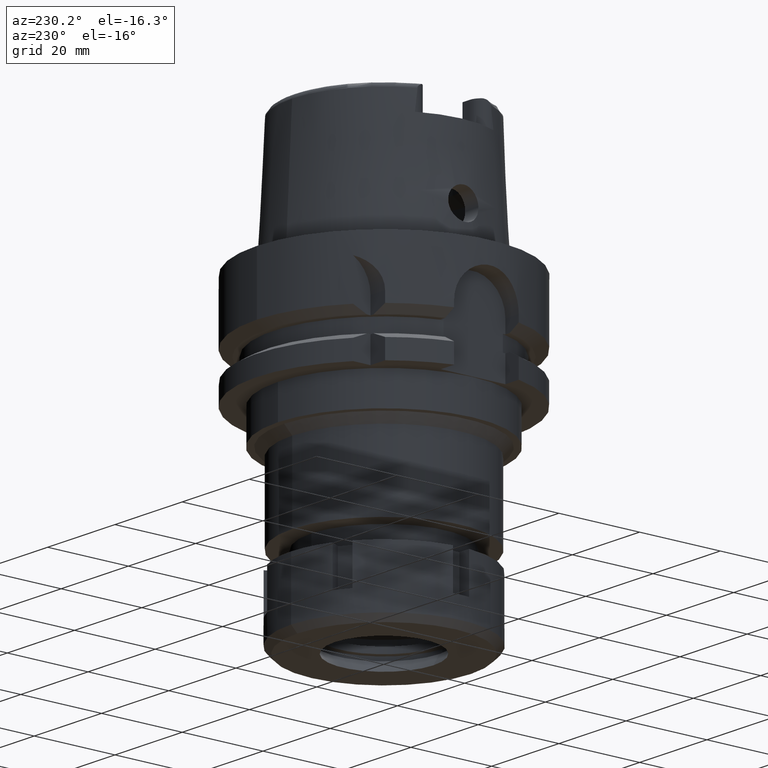
[diagram: clean part render]
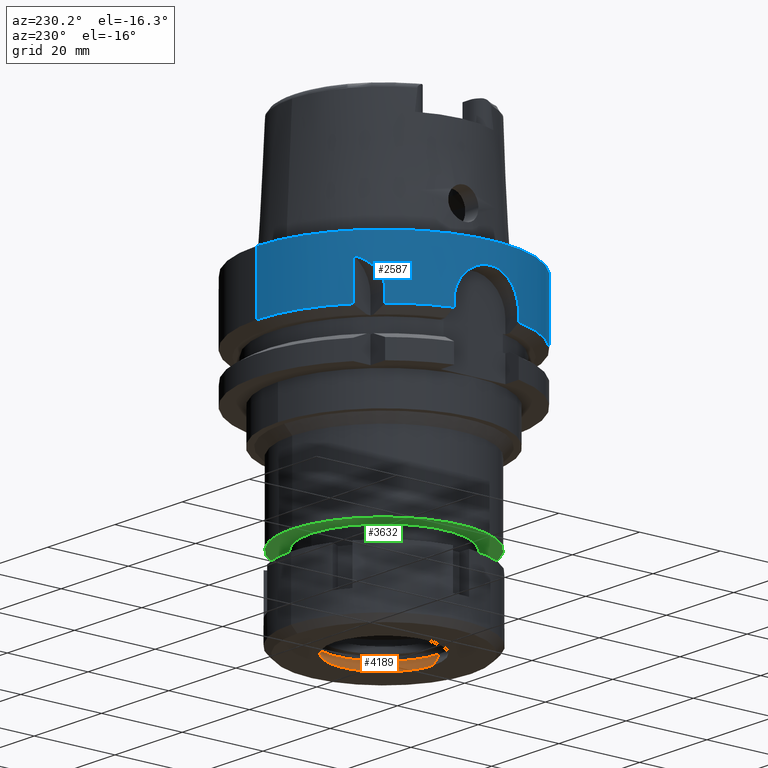
[diagram: same view with three faces highlighted in distinct colors, each labeled with its STEP entity id]
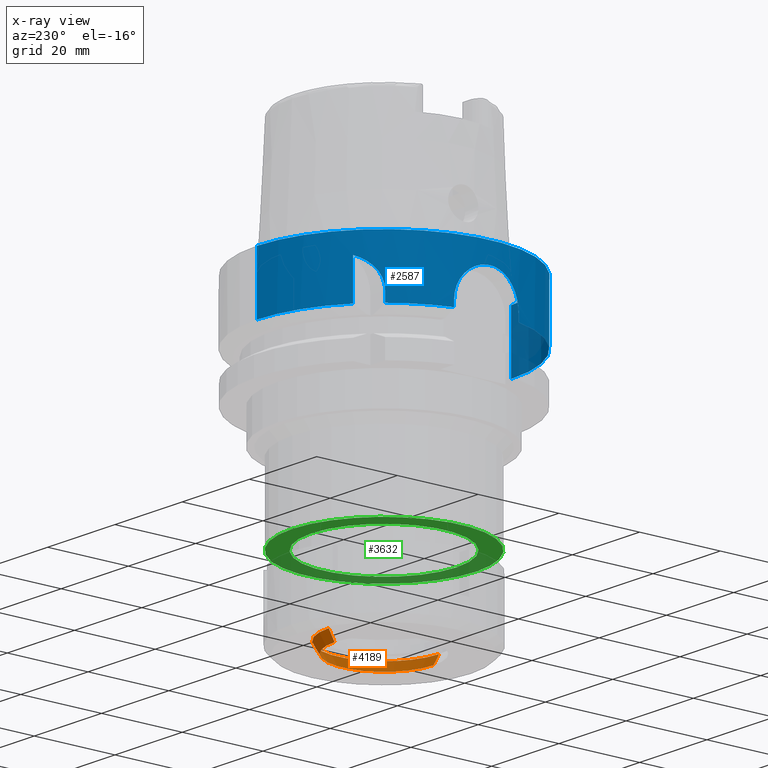
[diagram: x-ray of the same camera — body ghosted, the three highlighted faces saturated]
A machine part, auxiliary view with three faces highlighted in distinct colors.
The next image is the same camera in x-ray (body ghosted, the three faces saturated) — at least one of them is partly hidden behind the body in this view.
Their STEP definitions:

[orange] entity #4189 — the highlighted conical surface has half-angle 30 deg.
#86 = CARTESIAN_POINT ( 'NONE',  ( 0.0000000000000000000, 0.0000000000000000000, -16.00000000000000000 ) ) ;
#233 = ORIENTED_EDGE ( 'NONE', *, *, #5155, .T. ) ;
#357 = AXIS2_PLACEMENT_3D ( 'NONE', #1142, #4063, #3113 ) ;
#623 = CARTESIAN_POINT ( 'NONE',  ( 0.0000000000000000000, -12.25000000000000000, -16.00000000000000000 ) ) ;
#661 = AXIS2_PLACEMENT_3D ( 'NONE', #2147, #1275, #799 ) ;
#799 = DIRECTION ( 'NONE',  ( 0.0000000000000000000, -1.000000000000000000, 0.0000000000000000000 ) ) ;
#955 = CONICAL_SURFACE ( 'NONE', #357, 12.97168783649000012, 0.5235987755981996727 ) ;
#1007 = CARTESIAN_POINT ( 'NONE',  ( 0.0000000000000000000, 12.25000000000000000, -16.00000000000000000 ) ) ;
#1046 = CARTESIAN_POINT ( 'NONE',  ( 0.0000000000000000000, 13.69337567298000025, -13.50000000000000000 ) ) ;
#1108 = EDGE_LOOP ( 'NONE', ( #233, #4703, #3254, #5651 ) ) ;
#1142 = CARTESIAN_POINT ( 'NONE',  ( 0.0000000000000000000, 0.0000000000000000000, -14.75000000000000000 ) ) ;
#1275 = DIRECTION ( 'NONE',  ( 0.0000000000000000000, 0.0000000000000000000, 1.000000000000000000 ) ) ;
#1279 = LINE ( 'NONE', #3211, #3076 ) ;
#1459 = EDGE_CURVE ( 'NONE', #5921, #5547, #3383, .T. ) ;
#1531 = CARTESIAN_POINT ( 'NONE',  ( 0.0000000000000000000, -13.69337567298000025, -13.50000000000000000 ) ) ;
#1751 = VERTEX_POINT ( 'NONE', #1531 ) ;
#1841 = CARTESIAN_POINT ( 'NONE',  ( 0.0000000000000000000, 12.25000000000000000, -16.00000000000000000 ) ) ;
#2147 = CARTESIAN_POINT ( 'NONE',  ( 0.0000000000000000000, 0.0000000000000000000, -13.50000000000000000 ) ) ;
#2177 = CIRCLE ( 'NONE', #661, 13.69337567298000025 ) ;
#3076 = VECTOR ( 'NONE', #5989, 1000.000000000000114 ) ;
#3113 = DIRECTION ( 'NONE',  ( 0.0000000000000000000, 1.000000000000000000, 0.0000000000000000000 ) ) ;
#3211 = CARTESIAN_POINT ( 'NONE',  ( 0.0000000000000000000, -12.25000000000000000, -16.00000000000000000 ) ) ;
#3254 = ORIENTED_EDGE ( 'NONE', *, *, #5692, .T. ) ;
#3265 = VECTOR ( 'NONE', #3949, 1000.000000000000114 ) ;
#3294 = AXIS2_PLACEMENT_3D ( 'NONE', #86, #4887, #4537 ) ;
#3383 = LINE ( 'NONE', #1007, #3265 ) ;
#3949 = DIRECTION ( 'NONE',  ( 0.0000000000000000000, 0.4999999999996301292, 0.8660254037846522035 ) ) ;
#4063 = DIRECTION ( 'NONE',  ( 0.0000000000000000000, 0.0000000000000000000, 1.000000000000000000 ) ) ;
#4176 = EDGE_CURVE ( 'NONE', #6059, #1751, #1279, .T. ) ;
#4189 = ADVANCED_FACE ( 'NONE', ( #5480 ), #955, .F. ) ;
#4537 = DIRECTION ( 'NONE',  ( 0.0000000000000000000, 1.000000000000000000, 0.0000000000000000000 ) ) ;
#4703 = ORIENTED_EDGE ( 'NONE', *, *, #4176, .T. ) ;
#4887 = DIRECTION ( 'NONE',  ( 0.0000000000000000000, 0.0000000000000000000, -1.000000000000000000 ) ) ;
#5155 = EDGE_CURVE ( 'NONE', #5921, #6059, #5213, .T. ) ;
#5213 = CIRCLE ( 'NONE', #3294, 12.25000000000000000 ) ;
#5480 = FACE_OUTER_BOUND ( 'NONE', #1108, .T. ) ;
#5547 = VERTEX_POINT ( 'NONE', #1046 ) ;
#5651 = ORIENTED_EDGE ( 'NONE', *, *, #1459, .F. ) ;
#5692 = EDGE_CURVE ( 'NONE', #1751, #5547, #2177, .T. ) ;
#5921 = VERTEX_POINT ( 'NONE', #1841 ) ;
#5989 = DIRECTION ( 'NONE',  ( 0.0000000000000000000, -0.4999999999996301292, 0.8660254037846522035 ) ) ;
#6059 = VERTEX_POINT ( 'NONE', #623 ) ;

[blue] entity #2587 — the highlighted cylindrical surface (partial cylindrical patch) has radius 31.5 mm, axis along (0, 0, 1).
#12 = CARTESIAN_POINT ( 'NONE',  ( -30.53478132457567895, -7.738413873979763657, -10.95404076896876511 ) ) ;
#14 = DIRECTION ( 'NONE',  ( -0.9672125547036138915, -0.2539682539683034701, 0.0000000000000000000 ) ) ;
#84 = ORIENTED_EDGE ( 'NONE', *, *, #2288, .F. ) ;
#126 = CARTESIAN_POINT ( 'NONE',  ( -24.03293702703588508, 20.36377995902324756, -9.699793441030417185 ) ) ;
#162 = CARTESIAN_POINT ( 'NONE',  ( -23.42378172376663059, 21.06126184846387872, -8.129957077532985465 ) ) ;
#314 = EDGE_CURVE ( 'NONE', #1961, #1461, #1474, .T. ) ;
#318 = CARTESIAN_POINT ( 'NONE',  ( -30.46719547316000032, 8.000000000000000000, -13.00000000000000000 ) ) ;
#349 = DIRECTION ( 'NONE',  ( -1.699640780190991677E-08, -6.472482572648965634E-08, -0.9999999999999978906 ) ) ;
#365 = CARTESIAN_POINT ( 'NONE',  ( -30.46719547316397225, 8.000000000001035616, -12.74141075479413310 ) ) ;
#370 = CARTESIAN_POINT ( 'NONE',  ( 0.0000000000000000000, 31.50000000000000000, -1.042129345780999972E-13 ) ) ;
#420 = CARTESIAN_POINT ( 'NONE',  ( -31.30298909983558886, 3.519547592989542117, -5.814547669720095513 ) ) ;
#452 = CARTESIAN_POINT ( 'NONE',  ( -31.49677498113469909, -0.5190877987831435947, -5.012592344104646713 ) ) ;
#490 = ORIENTED_EDGE ( 'NONE', *, *, #2709, .T. ) ;
#512 = CARTESIAN_POINT ( 'NONE',  ( -31.02184410210504240, -5.471005260744992604, -7.157139546626337001 ) ) ;
#627 = CARTESIAN_POINT ( 'NONE',  ( -23.75836304887993577, 20.68338302311897436, -8.871588078641323705 ) ) ;
#684 = ORIENTED_EDGE ( 'NONE', *, *, #6161, .F. ) ;
#694 = CARTESIAN_POINT ( 'NONE',  ( -22.16546069069467606, 22.38176392649350532, -6.416426069915085684 ) ) ;
#723 = CARTESIAN_POINT ( 'NONE',  ( -20.00000000000000000, 24.33618704727999926, -5.000000000001000089 ) ) ;
#834 = CARTESIAN_POINT ( 'NONE',  ( -31.43404328909964818, 2.052651585299505310, -5.263364878251241663 ) ) ;
#850 = VECTOR ( 'NONE', #4786, 1000.000000000000000 ) ;
#851 = EDGE_CURVE ( 'NONE', #5933, #5292, #1784, .T. ) ;
#865 = CARTESIAN_POINT ( 'NONE',  ( -30.51893367473009278, 7.800472417068974984, -11.20535282269646693 ) ) ;
#895 = CARTESIAN_POINT ( 'NONE',  ( -31.15505801267153529, 4.650160006335834595, -6.489012830893209127 ) ) ;
#920 = CARTESIAN_POINT ( 'NONE',  ( -31.50001432302335758, 0.5184478547808345494, -4.999946921187914839 ) ) ;
#941 = AXIS2_PLACEMENT_3D ( 'NONE', #4261, #1405, #2859 ) ;
#951 = CARTESIAN_POINT ( 'NONE',  ( -31.42616245213579518, -2.180633058304401128, -5.295127838477964310 ) ) ;
#969 = EDGE_CURVE ( 'NONE', #5730, #3614, #4116, .T. ) ;
#987 = CARTESIAN_POINT ( 'NONE',  ( -30.64173941621018926, -7.303713809224436027, -9.725163778890566491 ) ) ;
#1036 = VECTOR ( 'NONE', #1093, 1000.000000000000000 ) ;
#1041 = CARTESIAN_POINT ( 'NONE',  ( -24.17251238106492650, 20.19755147336475432, -10.34113836718697321 ) ) ;
#1048 = CARTESIAN_POINT ( 'NONE',  ( 0.0000000000000000000, 0.0000000000000000000, -14.62250092523999889 ) ) ;
#1093 = DIRECTION ( 'NONE',  ( 9.894060569838856819E-07, 1.203919407603981730E-06, 0.9999999999987858601 ) ) ;
#1098 = CARTESIAN_POINT ( 'NONE',  ( -23.93505202198409521, 20.47925592437123399, -9.361512830603542668 ) ) ;
#1115 = B_SPLINE_CURVE_WITH_KNOTS ( 'NONE', 3,
 ( #5705, #365, #5739, #1368, #5171, #865, #2374, #3304, #4750, #1309, #2289, #5234, #2313, #1400, #2849, #5289, #4343, #2796, #6159, #895, #3330, #2822, #4725, #1427, #420, #3359, #2342, #4283, #1780, #834, #5257, #3716, #920, #6249, #452, #6215, #4690, #5645, #951, #4779, #1875, #4317, #3810, #4231, #1810, #2883, #1907, #3841, #3742, #5766, #4815, #512, #5323, #1934, #2912, #3866, #1457, #987, #3394, #4844, #12, #2436, #5792, #2052, #1519 ),
 .UNSPECIFIED., .F., .F.,
 ( 4, 2, 2, 2, 2, 2, 2, 2, 2, 2, 2, 2, 2, 2, 2, 2, 2, 2, 2, 1, 2, 2, 2, 2, 2, 2, 2, 2, 2, 2, 2, 2, 4 ),
 ( 0.0000000000000000000, 0.03125000000000010408, 0.06250000000000020817, 0.09375000000000030531, 0.1250000000000004163, 0.1875000000000005551, 0.2187500000000006384, 0.2500000000000006106, 0.2812500000000006106, 0.2968750000000006661, 0.3125000000000007216, 0.3437500000000007216, 0.3593750000000007216, 0.3750000000000006661, 0.4062500000000006661, 0.4375000000000006661, 0.5000000000000007772, 0.5312500000000008882, 0.5625000000000009992, 0.5937500000000011102, 0.6093750000000011102, 0.6250000000000012212, 0.6562500000000012212, 0.6718750000000011102, 0.6875000000000011102, 0.7187500000000009992, 0.7500000000000007772, 0.8125000000000006661, 0.8437500000000005551, 0.8750000000000004441, 0.9062500000000003331, 0.9375000000000002220, 1.000000000000000000 ),
 .UNSPECIFIED. ) ;
#1146 = VECTOR ( 'NONE', #349, 999.9999999999998863 ) ;
#1174 = VECTOR ( 'NONE', #4118, 1000.000000000000000 ) ;
#1201 = CARTESIAN_POINT ( 'NONE',  ( -23.59121459427546696, 20.87364920017294523, -8.475393648807528990 ) ) ;
#1248 = FACE_OUTER_BOUND ( 'NONE', #2211, .T. ) ;
#1309 = CARTESIAN_POINT ( 'NONE',  ( -30.66617644348366412, 7.202627032259602657, -9.478632536635503314 ) ) ;
#1368 = CARTESIAN_POINT ( 'NONE',  ( -30.48347368593275419, 7.937788966080352004, -11.97101911386945261 ) ) ;
#1400 = CARTESIAN_POINT ( 'NONE',  ( -30.91893338653462919, 6.024844494657774163, -7.730123708901341040 ) ) ;
#1405 = DIRECTION ( 'NONE',  ( 0.0000000000000000000, 0.0000000000000000000, -1.000000000000000000 ) ) ;
#1427 = CARTESIAN_POINT ( 'NONE',  ( -31.28954084416920267, 3.637070280330018335, -5.873293663025587641 ) ) ;
#1457 = CARTESIAN_POINT ( 'NONE',  ( -30.66829439183020511, -7.191777428149909390, -9.485901219012943031 ) ) ;
#1461 = VERTEX_POINT ( 'NONE', #5314 ) ;
#1474 = CIRCLE ( 'NONE', #5220, 31.50000000000000000 ) ;
#1519 = CARTESIAN_POINT ( 'NONE',  ( -30.46719547316000032, -8.000000000000000000, -13.00000000000000000 ) ) ;
#1545 = CARTESIAN_POINT ( 'NONE',  ( -24.12939378620182040, 20.24901020214436187, -10.13079694293886668 ) ) ;
#1605 = CARTESIAN_POINT ( 'NONE',  ( -22.42393665110885337, 22.12295987468458947, -6.683212340797858531 ) ) ;
#1628 = CARTESIAN_POINT ( 'NONE',  ( 0.0000000000000000000, 0.0000000000000000000, -14.62250092523999889 ) ) ;
#1635 = CARTESIAN_POINT ( 'NONE',  ( -22.22170050880115610, 22.32599005203464060, -6.471754504964832400 ) ) ;
#1673 = CARTESIAN_POINT ( 'NONE',  ( -23.04044880233925241, 21.48226169413714004, -7.458314647654957774 ) ) ;
#1709 = ORIENTED_EDGE ( 'NONE', *, *, #3343, .F. ) ;
#1780 = CARTESIAN_POINT ( 'NONE',  ( -31.39751812030917222, 2.551139336939393321, -5.413139665289612878 ) ) ;
#1784 = CIRCLE ( 'NONE', #5929, 31.50000000000000000 ) ;
#1810 = CARTESIAN_POINT ( 'NONE',  ( -31.26152886782687546, -3.870459532699298322, -5.997300732847667959 ) ) ;
#1812 = ORIENTED_EDGE ( 'NONE', *, *, #969, .F. ) ;
#1868 = DIRECTION ( 'NONE',  ( -7.648791858280645566E-08, 2.913008099989868903E-07, 0.9999999999999545919 ) ) ;
#1875 = CARTESIAN_POINT ( 'NONE',  ( -31.37578600937604278, -2.797363406238934314, -5.503890351301231831 ) ) ;
#1907 = CARTESIAN_POINT ( 'NONE',  ( -31.21750877597827767, -4.210714091329343489, -6.196544939674752506 ) ) ;
#1934 = CARTESIAN_POINT ( 'NONE',  ( -30.85032094693879756, -6.371617700732151057, -8.133432757289842385 ) ) ;
#1961 = VERTEX_POINT ( 'NONE', #2671 ) ;
#1990 = CARTESIAN_POINT ( 'NONE',  ( -24.26109616098778332, 20.09111896876528647, -10.89520886242261000 ) ) ;
#2044 = AXIS2_PLACEMENT_3D ( 'NONE', #3551, #5148, #6097 ) ;
#2052 = CARTESIAN_POINT ( 'NONE',  ( -30.46719547316398646, -8.000000000001030287, -12.48317112682726737 ) ) ;
#2111 = CARTESIAN_POINT ( 'NONE',  ( -23.69448981359079553, 20.75657293751336852, -8.711189346680543011 ) ) ;
#2173 = LINE ( 'NONE', #2618, #1174 ) ;
#2203 = DIRECTION ( 'NONE',  ( 0.0000000000000000000, 0.0000000000000000000, 1.000000000000000000 ) ) ;
#2211 = EDGE_LOOP ( 'NONE', ( #1812, #84, #2851, #1709, #3662, #5109, #3520, #5442, #2734, #490, #5202, #684 ) ) ;
#2215 = CARTESIAN_POINT ( 'NONE',  ( -24.33618704727999926, 20.00000000000000000, -12.11171390365999834 ) ) ;
#2288 = EDGE_CURVE ( 'NONE', #5355, #5730, #3127, .T. ) ;
#2289 = CARTESIAN_POINT ( 'NONE',  ( -30.72362743262492302, 6.956923362947529554, -9.014860882631914762 ) ) ;
#2313 = CARTESIAN_POINT ( 'NONE',  ( -30.85175720740582150, 6.359895452053936360, -8.139646238710072979 ) ) ;
#2342 = CARTESIAN_POINT ( 'NONE',  ( -31.34136433185249260, 3.159692181590580073, -5.649299289362412324 ) ) ;
#2374 = CARTESIAN_POINT ( 'NONE',  ( -30.53486775665267672, 7.738073491124319858, -10.95272776246926050 ) ) ;
#2378 = VECTOR ( 'NONE', #1868, 1000.000000000000000 ) ;
#2436 = CARTESIAN_POINT ( 'NONE',  ( -30.51876128852104841, -7.801143960569505431, -11.20858985244051276 ) ) ;
#2464 = CARTESIAN_POINT ( 'NONE',  ( -24.31741432570694172, 20.02299121550742456, -11.41281077843464331 ) ) ;
#2470 = CARTESIAN_POINT ( 'NONE',  ( -30.46719547316000032, -8.000000000000000000, -13.00000000000000000 ) ) ;
#2513 = DIRECTION ( 'NONE',  ( 0.0000000000000000000, -2.672583210396999878E-14, -1.000000000000000000 ) ) ;
#2587 = ADVANCED_FACE ( 'NONE', ( #1248 ), #5019, .T. ) ;
#2618 = CARTESIAN_POINT ( 'NONE',  ( -20.00000000000000000, 24.33618704727589588, -71.95000000000000284 ) ) ;
#2652 = CARTESIAN_POINT ( 'NONE',  ( -23.53771064302240035, 20.93400983489148004, -8.358695770585502061 ) ) ;
#2666 = EDGE_CURVE ( 'NONE', #3062, #4401, #6109, .T. ) ;
#2671 = CARTESIAN_POINT ( 'NONE',  ( 0.0000000000000000000, 31.50000000000000000, -14.62250092523999889 ) ) ;
#2709 = EDGE_CURVE ( 'NONE', #4401, #1961, #2768, .T. ) ;
#2734 = ORIENTED_EDGE ( 'NONE', *, *, #2666, .T. ) ;
#2768 = LINE ( 'NONE', #370, #850 ) ;
#2796 = CARTESIAN_POINT ( 'NONE',  ( -31.10597518892847191, 4.967801608295442151, -6.727898284169165244 ) ) ;
#2822 = CARTESIAN_POINT ( 'NONE',  ( -31.21807092385048321, 4.210852402492449187, -6.192810700885030606 ) ) ;
#2826 = EDGE_CURVE ( 'NONE', #5355, #4052, #3470, .T. ) ;
#2849 = CARTESIAN_POINT ( 'NONE',  ( -30.95339521520651616, 5.845824410271076133, -7.532364491997735279 ) ) ;
#2851 = ORIENTED_EDGE ( 'NONE', *, *, #2826, .T. ) ;
#2855 = CARTESIAN_POINT ( 'NONE',  ( -24.33618953147999875, 19.99999697720000214, -14.62251175989000096 ) ) ;
#2859 = DIRECTION ( 'NONE',  ( 0.0000000000000000000, -1.000000000000000000, 0.0000000000000000000 ) ) ;
#2883 = CARTESIAN_POINT ( 'NONE',  ( -31.24713637113113762, -3.984900995148348724, -6.061804231062535742 ) ) ;
#2912 = CARTESIAN_POINT ( 'NONE',  ( -30.75521154237903687, -6.810977657199371649, -8.795226142241640233 ) ) ;
#2916 = CARTESIAN_POINT ( 'NONE',  ( 0.0000000000000000000, 31.50000000000000000, -1.042129345780999972E-13 ) ) ;
#2919 = DIRECTION ( 'NONE',  ( 0.0000000000000000000, 0.0000000000000000000, 1.000000000000000000 ) ) ;
#2942 = CARTESIAN_POINT ( 'NONE',  ( -24.33618704728001347, 20.00000000000001421, -11.76178669760036755 ) ) ;
#3024 = CARTESIAN_POINT ( 'NONE',  ( -24.33618953147999875, 19.99999697720000214, -14.62251175989000096 ) ) ;
#3030 = CARTESIAN_POINT ( 'NONE',  ( -22.60291729444561781, 21.94057589840626576, -6.885214217705590833 ) ) ;
#3062 = VERTEX_POINT ( 'NONE', #5828 ) ;
#3127 = LINE ( 'NONE', #3024, #1036 ) ;
#3133 = CARTESIAN_POINT ( 'NONE',  ( -23.41481459877616800, 21.07123043680089580, -8.112625686035599415 ) ) ;
#3300 = CARTESIAN_POINT ( 'NONE',  ( -30.46719534905999893, -8.000000472634999582, -14.62249663472000094 ) ) ;
#3304 = CARTESIAN_POINT ( 'NONE',  ( -30.57233717797150163, 7.588684322511332958, -10.45425618822308600 ) ) ;
#3318 = CARTESIAN_POINT ( 'NONE',  ( -30.46719547316000032, 8.000000000000000000, -13.00000000000000000 ) ) ;
#3319 = LINE ( 'NONE', #318, #1146 ) ;
#3330 = CARTESIAN_POINT ( 'NONE',  ( -31.17125952987654713, 4.540361974734397954, -6.412027133021472203 ) ) ;
#3343 = EDGE_CURVE ( 'NONE', #6217, #4052, #3319, .T. ) ;
#3359 = CARTESIAN_POINT ( 'NONE',  ( -31.32884522479364264, 3.281432419640696097, -5.702786143405101704 ) ) ;
#3394 = CARTESIAN_POINT ( 'NONE',  ( -30.59373676540122844, -7.502246369409716564, -10.20989857616563157 ) ) ;
#3403 = DIRECTION ( 'NONE',  ( -0.7725773665802099233, 0.6349206349206079070, 0.0000000000000000000 ) ) ;
#3470 = CIRCLE ( 'NONE', #4190, 31.50000000000000711 ) ;
#3480 = CARTESIAN_POINT ( 'NONE',  ( -24.12066155857428029, 20.25941267111032218, -10.09049476243939303 ) ) ;
#3508 = CARTESIAN_POINT ( 'NONE',  ( -22.14115827318642360, 22.40578701210981549, -6.392893518363817584 ) ) ;
#3520 = ORIENTED_EDGE ( 'NONE', *, *, #851, .T. ) ;
#3551 = CARTESIAN_POINT ( 'NONE',  ( 0.0000000000000000000, 0.0000000000000000000, -71.95000000000000284 ) ) ;
#3569 = CARTESIAN_POINT ( 'NONE',  ( -22.11782216103680909, 22.42882346854284137, -6.370446457869513246 ) ) ;
#3604 = CARTESIAN_POINT ( 'NONE',  ( -20.81550051534737023, 23.66599124893452810, -5.345271488717822095 ) ) ;
#3614 = VERTEX_POINT ( 'NONE', #6241 ) ;
#3662 = ORIENTED_EDGE ( 'NONE', *, *, #4265, .T. ) ;
#3716 = CARTESIAN_POINT ( 'NONE',  ( -31.48718089941873899, 1.033466738007025931, -5.050045406864859920 ) ) ;
#3742 = CARTESIAN_POINT ( 'NONE',  ( -31.15515490540210664, -4.653652310241340295, -6.487463031424500315 ) ) ;
#3801 = VECTOR ( 'NONE', #2513, 1000.000000000000000 ) ;
#3810 = CARTESIAN_POINT ( 'NONE',  ( -31.32926139477863003, -3.284444874349291332, -5.700584946594625890 ) ) ;
#3841 = CARTESIAN_POINT ( 'NONE',  ( -31.20241979553625455, -4.321057527293623579, -6.266097809128804208 ) ) ;
#3866 = CARTESIAN_POINT ( 'NONE',  ( -30.72496428720805284, -6.945683049909605167, -9.021600275589484852 ) ) ;
#3929 = CARTESIAN_POINT ( 'NONE',  ( -24.23763025902146495, 20.11942903129526883, -10.72365004949240408 ) ) ;
#4049 = CARTESIAN_POINT ( 'NONE',  ( -23.47202326876852041, 21.00752253730253472, -8.224737355040758757 ) ) ;
#4052 = VERTEX_POINT ( 'NONE', #5013 ) ;
#4116 = B_SPLINE_CURVE_WITH_KNOTS ( 'NONE', 3,
 ( #4873, #2942, #2464, #1990, #3929, #5851, #1041, #5882, #1545, #3480, #126, #1098, #627, #2111, #1201, #2652, #4049, #5471, #162, #3133, #5063, #1673, #5982, #3030, #1605, #4587, #1635, #694, #3508, #4490, #3569, #4526, #3604, #723 ),
 .UNSPECIFIED., .F., .F.,
 ( 4, 2, 2, 1, 2, 2, 2, 2, 1, 1, 2, 2, 2, 2, 1, 1, 1, 2, 2, 4 ),
 ( 0.0000000000000000000, 0.1250000000000032196, 0.1875000000000052180, 0.2187500000000060785, 0.2343750000000063838, 0.2500000000000066613, 0.3750000000000099920, 0.4375000000000116573, 0.4687500000000127676, 0.4843750000000133227, 0.4921875000000135447, 0.5000000000000137668, 0.6250000000000152101, 0.6875000000000156541, 0.7187500000000163203, 0.7343750000000163203, 0.7421875000000157652, 0.7460937500000155431, 0.7500000000000153211, 1.000000000000000000 ),
 .UNSPECIFIED. ) ;
#4118 = DIRECTION ( 'NONE',  ( -0.0000000000000000000, -0.0000000000000000000, -1.000000000000000000 ) ) ;
#4190 = AXIS2_PLACEMENT_3D ( 'NONE', #1048, #2919, #3403 ) ;
#4231 = CARTESIAN_POINT ( 'NONE',  ( -31.30329595391356179, -3.522533039538819022, -5.812390806476845917 ) ) ;
#4261 = CARTESIAN_POINT ( 'NONE',  ( 0.0000000000000000000, 0.0000000000000000000, -1.705302565823999875E-13 ) ) ;
#4265 = EDGE_CURVE ( 'NONE', #6217, #4430, #1115, .T. ) ;
#4278 = CARTESIAN_POINT ( 'NONE',  ( -30.46719534905999893, -8.000000472634999582, -14.62249663472000094 ) ) ;
#4283 = CARTESIAN_POINT ( 'NONE',  ( -31.37653924856590493, 2.796761741815704028, -5.500262343877506233 ) ) ;
#4317 = CARTESIAN_POINT ( 'NONE',  ( -31.36478182114308666, -2.918134803405134203, -5.550077293318775418 ) ) ;
#4343 = CARTESIAN_POINT ( 'NONE',  ( -31.05592142090470276, 5.274725186496310947, -6.979328001445220586 ) ) ;
#4344 = DIRECTION ( 'NONE',  ( 0.0000000000000000000, 0.0000000000000000000, 1.000000000000000000 ) ) ;
#4401 = VERTEX_POINT ( 'NONE', #2916 ) ;
#4430 = VERTEX_POINT ( 'NONE', #2470 ) ;
#4490 = CARTESIAN_POINT ( 'NONE',  ( -22.12491229744317778, 22.42182884765117024, -6.377245127194153262 ) ) ;
#4504 = LINE ( 'NONE', #4923, #3801 ) ;
#4526 = CARTESIAN_POINT ( 'NONE',  ( -21.51836710721181234, 23.01946364846037341, -5.799114104701471817 ) ) ;
#4546 = DIRECTION ( 'NONE',  ( 0.0000000000000000000, 1.000000000000000000, 0.0000000000000000000 ) ) ;
#4587 = CARTESIAN_POINT ( 'NONE',  ( -22.33231685402952138, 22.21558083527973437, -6.584082957457114915 ) ) ;
#4690 = CARTESIAN_POINT ( 'NONE',  ( -31.47467690399639295, -1.288642814304945761, -5.100161919994336657 ) ) ;
#4725 = CARTESIAN_POINT ( 'NONE',  ( -31.24778610015543023, 3.985028191983319701, -6.058127333386054580 ) ) ;
#4750 = CARTESIAN_POINT ( 'NONE',  ( -30.59375340777170749, 7.502186739986827391, -10.20961238161619811 ) ) ;
#4779 = CARTESIAN_POINT ( 'NONE',  ( -31.39671494537362406, -2.551760249646299883, -5.416713587701395660 ) ) ;
#4786 = DIRECTION ( 'NONE',  ( 0.0000000000000000000, 2.672583210396999878E-14, -1.000000000000000000 ) ) ;
#4815 = CARTESIAN_POINT ( 'NONE',  ( -31.05571262836400592, -5.275953008270611200, -6.980406633609648637 ) ) ;
#4831 = EDGE_CURVE ( 'NONE', #5933, #4430, #5641, .T. ) ;
#4844 = CARTESIAN_POINT ( 'NONE',  ( -30.57221971732823107, -7.589156829323324693, -10.45567397418127165 ) ) ;
#4873 = CARTESIAN_POINT ( 'NONE',  ( -24.33618704727999926, 20.00000000000000000, -12.11171390365999834 ) ) ;
#4905 = CARTESIAN_POINT ( 'NONE',  ( 0.0000000000000000000, 0.0000000000000000000, -14.62250092523999889 ) ) ;
#4923 = CARTESIAN_POINT ( 'NONE',  ( 0.0000000000000000000, -31.50000000000000000, -1.042129345780999972E-13 ) ) ;
#5013 = CARTESIAN_POINT ( 'NONE',  ( -30.46719550073999727, 7.999999894983998772, -14.62250187855999961 ) ) ;
#5019 = CYLINDRICAL_SURFACE ( 'NONE', #2044, 31.50000000000000000 ) ;
#5063 = CARTESIAN_POINT ( 'NONE',  ( -23.23366085135468140, 21.27231129298057510, -7.766591567163299459 ) ) ;
#5109 = ORIENTED_EDGE ( 'NONE', *, *, #4831, .F. ) ;
#5148 = DIRECTION ( 'NONE',  ( 0.0000000000000000000, 0.0000000000000000000, 1.000000000000000000 ) ) ;
#5171 = CARTESIAN_POINT ( 'NONE',  ( -30.49311703359665060, 7.900790855819824543, -11.71738148935913593 ) ) ;
#5202 = ORIENTED_EDGE ( 'NONE', *, *, #314, .T. ) ;
#5220 = AXIS2_PLACEMENT_3D ( 'NONE', #1628, #2203, #4546 ) ;
#5226 = EDGE_CURVE ( 'NONE', #3062, #5292, #4504, .T. ) ;
#5234 = CARTESIAN_POINT ( 'NONE',  ( -30.81885633634706068, 6.516947939316977134, -8.352431729943626593 ) ) ;
#5257 = CARTESIAN_POINT ( 'NONE',  ( -31.44966230150924957, 1.798303295845807614, -5.200421216196068563 ) ) ;
#5289 = CARTESIAN_POINT ( 'NONE',  ( -31.02187905824328951, 5.470773078845157400, -7.156983224162666524 ) ) ;
#5292 = VERTEX_POINT ( 'NONE', #5994 ) ;
#5314 = CARTESIAN_POINT ( 'NONE',  ( -20.00001377493000021, 24.33617572673000140, -14.62245154170999939 ) ) ;
#5323 = CARTESIAN_POINT ( 'NONE',  ( -30.91857265969240487, -6.036448038454229170, -7.723296958652832167 ) ) ;
#5355 = VERTEX_POINT ( 'NONE', #2855 ) ;
#5442 = ORIENTED_EDGE ( 'NONE', *, *, #5226, .F. ) ;
#5471 = CARTESIAN_POINT ( 'NONE',  ( -23.44317165884715592, 21.03967991147673899, -8.167804824676128561 ) ) ;
#5641 = LINE ( 'NONE', #4278, #2378 ) ;
#5645 = CARTESIAN_POINT ( 'NONE',  ( -31.44949717071714090, -1.801392301215564151, -5.201080277783473704 ) ) ;
#5705 = CARTESIAN_POINT ( 'NONE',  ( -30.46719547316000032, 8.000000000000000000, -13.00000000000000000 ) ) ;
#5730 = VERTEX_POINT ( 'NONE', #2215 ) ;
#5739 = CARTESIAN_POINT ( 'NONE',  ( -30.47046940356813849, 7.987562579235288673, -12.48389672852684740 ) ) ;
#5766 = CARTESIAN_POINT ( 'NONE',  ( -31.12245666178021963, -4.866791380018240964, -6.645082477807050303 ) ) ;
#5792 = CARTESIAN_POINT ( 'NONE',  ( -30.48036050189217860, -7.950356871973275119, -11.97071498079079532 ) ) ;
#5828 = CARTESIAN_POINT ( 'NONE',  ( 0.0000000000000000000, -31.50000000000000000, -1.705302565823999875E-13 ) ) ;
#5851 = CARTESIAN_POINT ( 'NONE',  ( -24.19539163548208549, 20.17013717307482779, -10.46830947213838137 ) ) ;
#5882 = CARTESIAN_POINT ( 'NONE',  ( -24.14699321267654497, 20.22802173336171450, -10.21481415021040462 ) ) ;
#5929 = AXIS2_PLACEMENT_3D ( 'NONE', #4905, #4344, #14 ) ;
#5933 = VERTEX_POINT ( 'NONE', #3300 ) ;
#5982 = CARTESIAN_POINT ( 'NONE',  ( -22.71655912224093399, 21.82279715023530642, -7.024875566565537355 ) ) ;
#5994 = CARTESIAN_POINT ( 'NONE',  ( 0.0000000000000000000, -31.50000000000000000, -14.62250092523999889 ) ) ;
#6097 = DIRECTION ( 'NONE',  ( 0.0000000000000000000, 1.000000000000000000, 0.0000000000000000000 ) ) ;
#6109 = CIRCLE ( 'NONE', #941, 31.50000000000000000 ) ;
#6159 = CARTESIAN_POINT ( 'NONE',  ( -31.12249083192365262, 4.863351958709387191, -6.646597231210494172 ) ) ;
#6161 = EDGE_CURVE ( 'NONE', #3614, #1461, #2173, .T. ) ;
#6215 = CARTESIAN_POINT ( 'NONE',  ( -31.48408220224367682, -1.033854069702510481, -5.062799221716646869 ) ) ;
#6217 = VERTEX_POINT ( 'NONE', #3318 ) ;
#6241 = CARTESIAN_POINT ( 'NONE',  ( -20.00000000000000000, 24.33618704727999926, -5.000000000001000089 ) ) ;
#6249 = CARTESIAN_POINT ( 'NONE',  ( -31.49999282048705140, -0.2605281970620859644, -5.000027238485406755 ) ) ;

[green] entity #3632 — the highlighted planar face has unit normal (0, 0, 1).
#103 = DIRECTION ( 'NONE',  ( 0.0000000000000000000, -1.000000000000000000, 0.0000000000000000000 ) ) ;
#218 = VERTEX_POINT ( 'NONE', #2932 ) ;
#287 = DIRECTION ( 'NONE',  ( 0.0000000000000000000, -1.000000000000000000, 0.0000000000000000000 ) ) ;
#334 = CARTESIAN_POINT ( 'NONE',  ( 0.0000000000000000000, 0.0000000000000000000, -54.50000000000000000 ) ) ;
#516 = DIRECTION ( 'NONE',  ( 0.0000000000000000000, 0.0000000000000000000, 1.000000000000000000 ) ) ;
#562 = PLANE ( 'NONE',  #1257 ) ;
#838 = DIRECTION ( 'NONE',  ( 0.0000000000000000000, 0.0000000000000000000, -1.000000000000000000 ) ) ;
#1040 = EDGE_CURVE ( 'NONE', #1172, #6092, #1380, .T. ) ;
#1172 = VERTEX_POINT ( 'NONE', #1866 ) ;
#1257 = AXIS2_PLACEMENT_3D ( 'NONE', #2488, #5873, #3469 ) ;
#1380 = CIRCLE ( 'NONE', #6032, 18.00000000000000000 ) ;
#1683 = EDGE_LOOP ( 'NONE', ( #3611, #2319 ) ) ;
#1866 = CARTESIAN_POINT ( 'NONE',  ( 0.0000000000000000000, -18.00000000000000000, -54.50000000000000000 ) ) ;
#2258 = AXIS2_PLACEMENT_3D ( 'NONE', #334, #838, #2320 ) ;
#2319 = ORIENTED_EDGE ( 'NONE', *, *, #4371, .F. ) ;
#2320 = DIRECTION ( 'NONE',  ( 0.0000000000000000000, 1.000000000000000000, 0.0000000000000000000 ) ) ;
#2384 = AXIS2_PLACEMENT_3D ( 'NONE', #4623, #5609, #2730 ) ;
#2488 = CARTESIAN_POINT ( 'NONE',  ( 0.0000000000000000000, 0.0000000000000000000, -54.50000000000000000 ) ) ;
#2639 = EDGE_CURVE ( 'NONE', #6092, #1172, #5390, .T. ) ;
#2730 = DIRECTION ( 'NONE',  ( 0.0000000000000000000, 1.000000000000000000, 0.0000000000000000000 ) ) ;
#2835 = EDGE_LOOP ( 'NONE', ( #3015, #5708 ) ) ;
#2932 = CARTESIAN_POINT ( 'NONE',  ( 0.0000000000000000000, 22.75000000000000000, -54.50000000000000000 ) ) ;
#2945 = CARTESIAN_POINT ( 'NONE',  ( 0.0000000000000000000, 0.0000000000000000000, -54.50000000000000000 ) ) ;
#3015 = ORIENTED_EDGE ( 'NONE', *, *, #2639, .F. ) ;
#3102 = CARTESIAN_POINT ( 'NONE',  ( 0.0000000000000000000, 18.00000000000000000, -54.50000000000000000 ) ) ;
#3469 = DIRECTION ( 'NONE',  ( 1.000000000000000000, 0.0000000000000000000, 0.0000000000000000000 ) ) ;
#3611 = ORIENTED_EDGE ( 'NONE', *, *, #5839, .F. ) ;
#3632 = ADVANCED_FACE ( 'NONE', ( #5845, #5372 ), #562, .F. ) ;
#3794 = AXIS2_PLACEMENT_3D ( 'NONE', #2945, #516, #103 ) ;
#4250 = CARTESIAN_POINT ( 'NONE',  ( 0.0000000000000000000, -22.75000000000000000, -54.50000000000000000 ) ) ;
#4371 = EDGE_CURVE ( 'NONE', #4754, #218, #5506, .T. ) ;
#4556 = CARTESIAN_POINT ( 'NONE',  ( 0.0000000000000000000, 0.0000000000000000000, -54.50000000000000000 ) ) ;
#4619 = DIRECTION ( 'NONE',  ( 0.0000000000000000000, 0.0000000000000000000, -1.000000000000000000 ) ) ;
#4623 = CARTESIAN_POINT ( 'NONE',  ( 0.0000000000000000000, 0.0000000000000000000, -54.50000000000000000 ) ) ;
#4754 = VERTEX_POINT ( 'NONE', #4250 ) ;
#5372 = FACE_BOUND ( 'NONE', #2835, .T. ) ;
#5390 = CIRCLE ( 'NONE', #2258, 18.00000000000000000 ) ;
#5506 = CIRCLE ( 'NONE', #3794, 22.75000000000000000 ) ;
#5609 = DIRECTION ( 'NONE',  ( 0.0000000000000000000, 0.0000000000000000000, 1.000000000000000000 ) ) ;
#5628 = CIRCLE ( 'NONE', #2384, 22.75000000000000000 ) ;
#5708 = ORIENTED_EDGE ( 'NONE', *, *, #1040, .F. ) ;
#5839 = EDGE_CURVE ( 'NONE', #218, #4754, #5628, .T. ) ;
#5845 = FACE_OUTER_BOUND ( 'NONE', #1683, .T. ) ;
#5873 = DIRECTION ( 'NONE',  ( 0.0000000000000000000, 0.0000000000000000000, 1.000000000000000000 ) ) ;
#6032 = AXIS2_PLACEMENT_3D ( 'NONE', #4556, #4619, #287 ) ;
#6092 = VERTEX_POINT ( 'NONE', #3102 ) ;